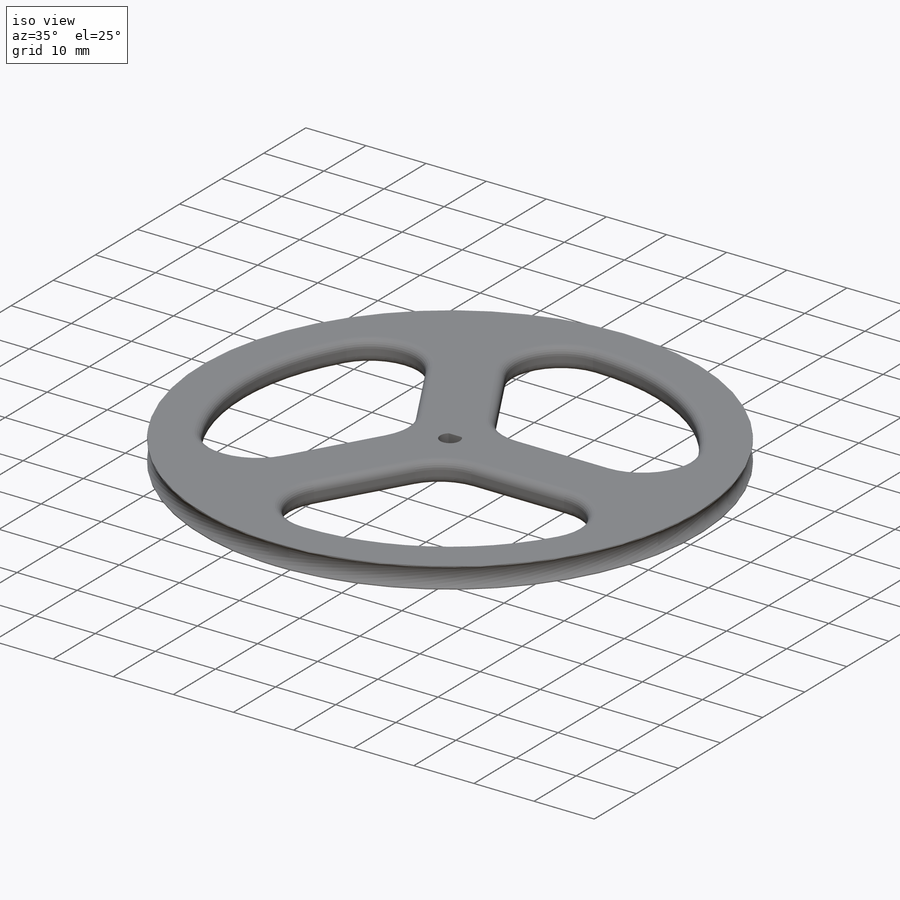
[diagram: iso view]
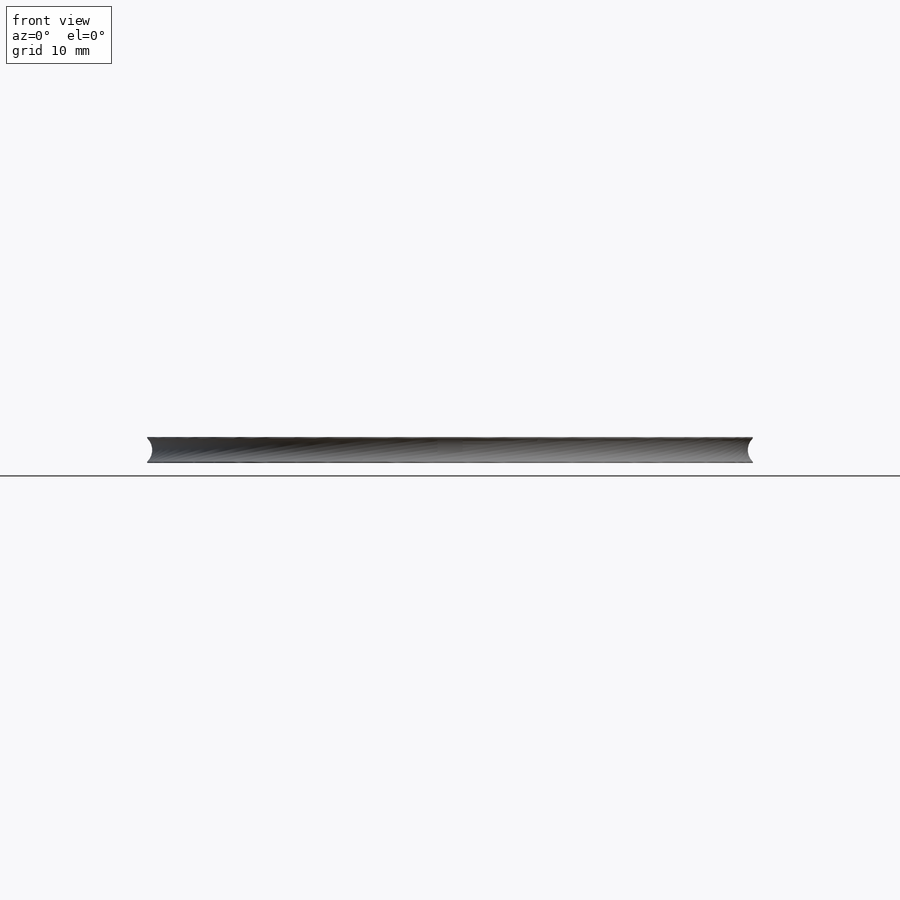
[diagram: front view]
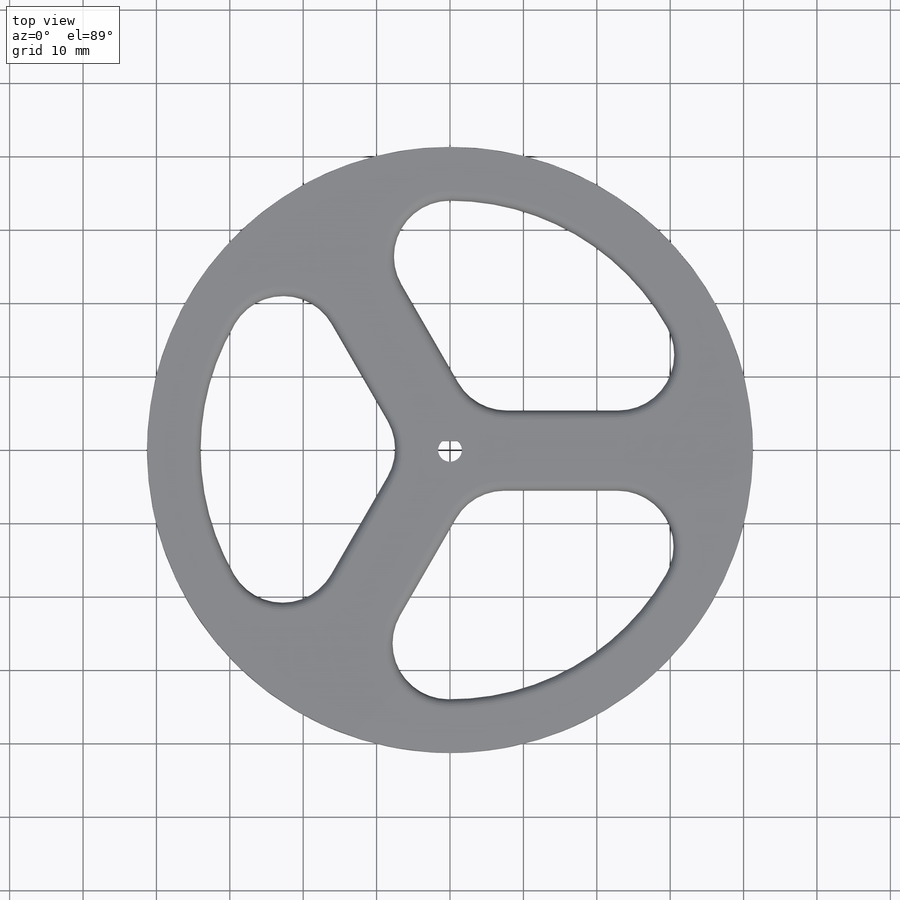
[diagram: top view]
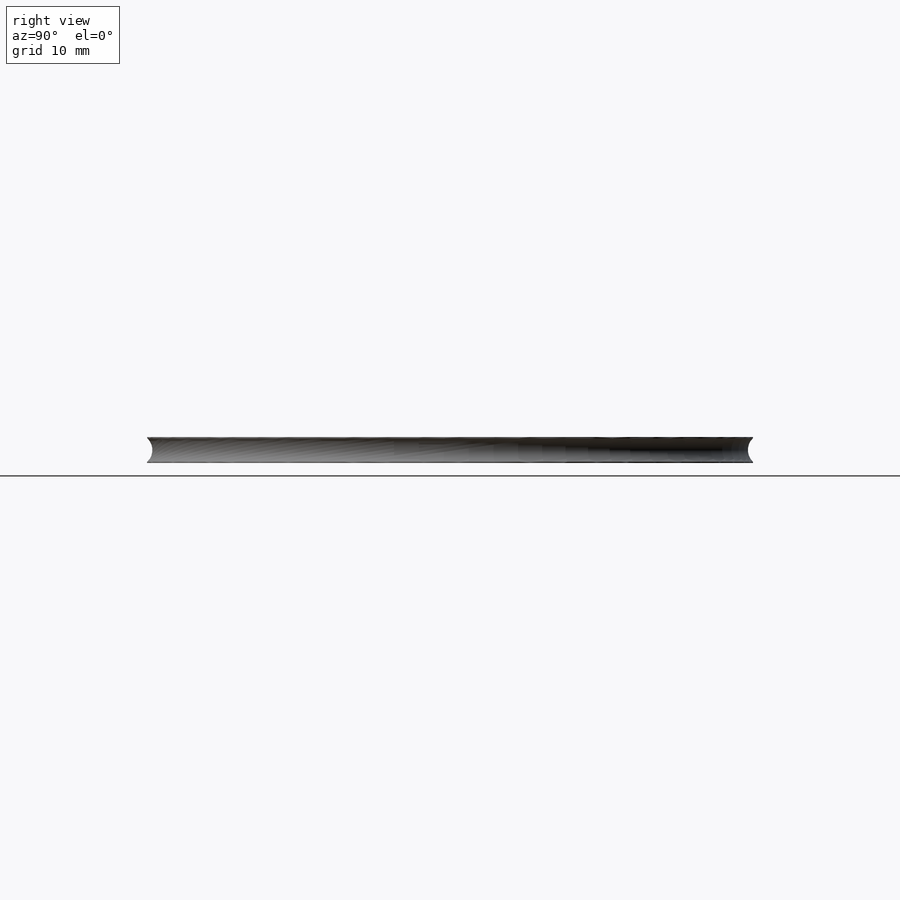
[diagram: right view]
SOLIDWORKS PART (.sldprt)
format: sldprt  version: not decoded by parser v0  size: 337,920 bytes
history: native  units: mm
features: sketch x4, cut_extrude x2, fillet x2, material x1, extrude x1, pattern_circular x1, cut_revolve x1 (+13 scaffold rows collapsed)
feature tree (25):
  scaffold x13  (default folders/planes/origin — collapsed)
  material  "Material <not specified>"
  sketch  "Sketch1"  dims[D1=82.55mm]
  extrude  "Boss-Extrude1"  Depth=3.5306mm
  sketch  "Sketch2"  dims[c1.D3=~33.979245mm c1.D1=~34.829568mm c2.D1=120.0deg c2.D2=~34.829568mm c3.D2=60.0deg c3.D3=~72.312838mm c4.D2=~33.119006mm c5.D2=60.0deg c5.D3=~30.257309mm]
  cut_extrude  "Cut-Extrude1"  Depth=3.5306mm
  fillet  "Fillet2"  Radius=7.62mm
  fillet  "Fillet3"  Radius=1.27mm
  pattern_circular  "CirPattern3"  Count=3 Angle=360deg
  sketch  "Sketch4"  dims[D1=~88.69591mm]
  sketch  "Sketch5"  dims[D1=3.2512mm D2=1.2192mm]
  cut_extrude  "Cut-Extrude2"  Depth=3.5306mm
  cut_revolve  "Cut-Revolve3"  Angle=360deg
decode coverage: 11 of 11 modeling features carry decoded parameters
note: ~ marks probable driven/reference dimensions
note: suppression state not decoded; provenance and decode notes live in map.json
